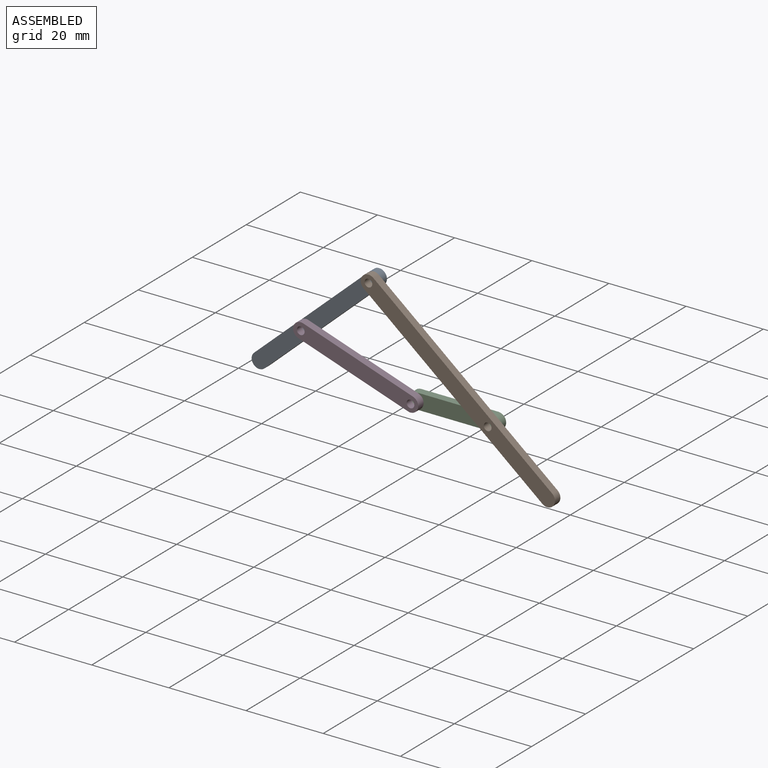
[diagram: assembled view]
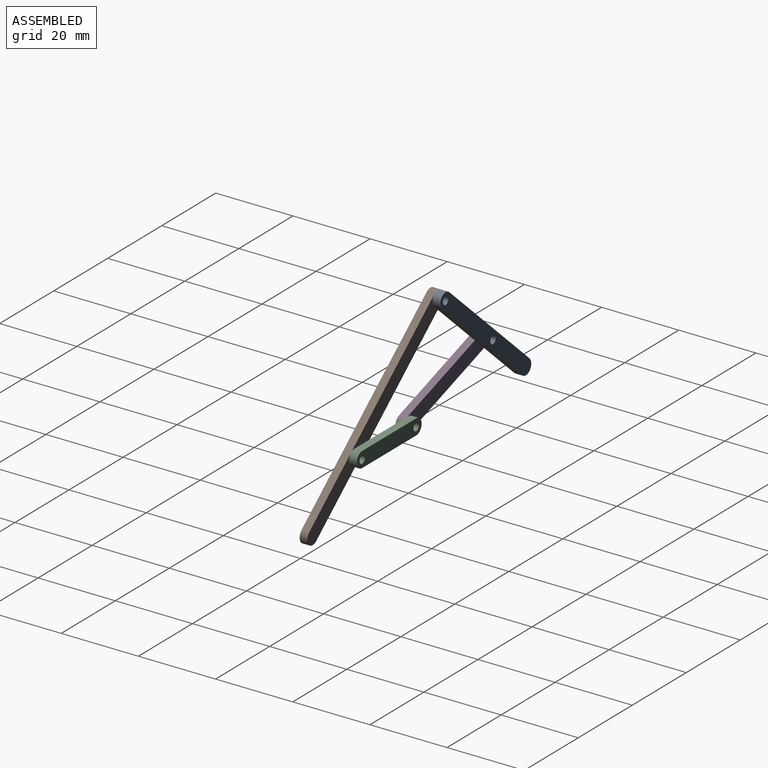
[diagram: assembled view, second angle]
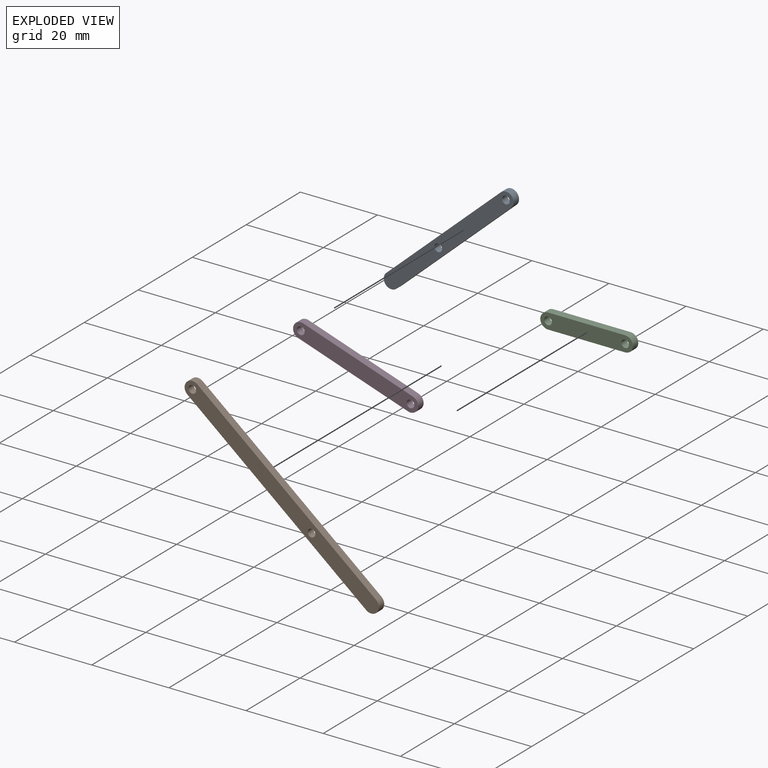
[diagram: exploded view]
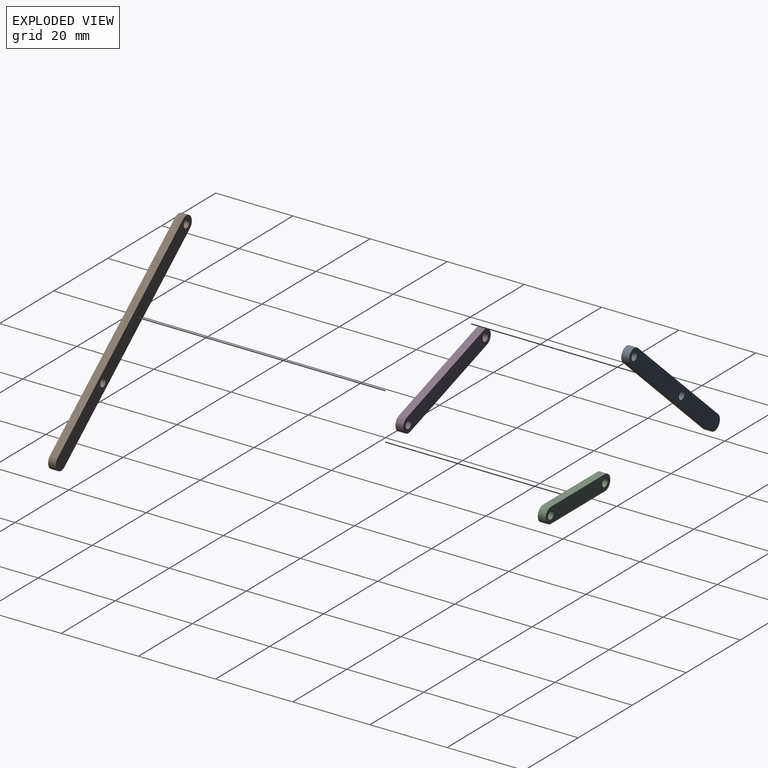
[diagram: exploded view, second angle]
ASSEMBLY  parts=4 mates=4
PART A: 8 faces, bbox 28.7x2x35.5 mm
  f0: plane 31.48x24.68mm, normal (0.79,0,-0.62), area 80mm2, adj f1,f4,f6,f7
  f1: cylinder r=2mm len=3.57mm, axis (0,-1,0), area 12.6mm2, adj f0,f2,f6,f7
  f2: plane 31.48x24.68mm, normal (-0.79,0,0.62), area 80mm2, adj f1,f4,f6,f7
  f3: cylinder r=1mm len=2mm, axis (0,-1,0), area 12.6mm2, adj f6,f7
  f4: cylinder r=2mm len=3.57mm, axis (0,-1,0), area 12.6mm2, adj f0,f2,f6,f7
  f5: cylinder r=1mm len=2mm, axis (0,-1,0), area 12.6mm2, adj f6,f7
  f6: plane 35.48x28.68mm, normal (0,1,0), area 166.3mm2, adj f0,f1,f2,f3,f4,f5
  f7: plane 35.48x28.68mm, normal (0,-1,0), area 166.3mm2, adj f0,f1,f2,f3,f4,f5
PART B: 8 faces, bbox 57.1x2x31.9 mm
  f0: plane 53.11x27.91mm, normal (-0.47,0,-0.89), area 120mm2, adj f1,f4,f6,f7
  f1: cylinder r=2mm len=3.77mm, axis (0,1,0), area 12.6mm2, adj f0,f2,f6,f7
  f2: plane 53.11x27.91mm, normal (0.47,0,0.89), area 120mm2, adj f1,f4,f6,f7
  f3: cylinder r=1mm len=2mm, axis (0,1,0), area 12.6mm2, adj f6,f7
  f4: cylinder r=2mm len=3.77mm, axis (0,1,0), area 12.6mm2, adj f0,f2,f6,f7
  f5: cylinder r=1mm len=2mm, axis (0,1,0), area 12.6mm2, adj f6,f7
  f6: plane 57.11x31.91mm, normal (0,-1,0), area 246.3mm2, adj f0,f1,f2,f3,f4,f5
  f7: plane 57.11x31.91mm, normal (0,1,0), area 246.3mm2, adj f0,f1,f2,f3,f4,f5
PART C: 8 faces, bbox 24x2x4 mm
  f0: plane 20x2mm, normal (0,0,1), area 40mm2, adj f1,f4,f6,f7
  f1: cylinder r=2mm len=4mm, axis (0,-1,0), area 12.6mm2, adj f0,f2,f6,f7
  f2: plane 20x2mm, normal (0,0,-1), area 40mm2, adj f1,f4,f6,f7
  f3: cylinder r=1mm len=2mm, axis (0,-1,0), area 12.6mm2, adj f6,f7
  f4: cylinder r=2mm len=4mm, axis (0,-1,0), area 12.6mm2, adj f0,f2,f6,f7
  f5: cylinder r=1mm len=2mm, axis (0,-1,0), area 12.6mm2, adj f6,f7
  f6: plane 24x4mm, normal (0,1,0), area 86.3mm2, adj f0,f1,f2,f3,f4,f5
  f7: plane 24x4mm, normal (0,-1,0), area 86.3mm2, adj f0,f1,f2,f3,f4,f5
PART D: 8 faces, bbox 34x2x4 mm
  f0: plane 30x2mm, normal (0,0,1), area 60mm2, adj f1,f4,f6,f7
  f1: cylinder r=2mm len=4mm, axis (0,1,0), area 12.6mm2, adj f0,f2,f6,f7
  f2: plane 30x2mm, normal (0,0,-1), area 60mm2, adj f1,f4,f6,f7
  f3: cylinder r=1mm len=2mm, axis (0,1,0), area 12.6mm2, adj f6,f7
  f4: cylinder r=2mm len=4mm, axis (0,1,0), area 12.6mm2, adj f0,f2,f6,f7
  f5: cylinder r=1mm len=2mm, axis (0,1,0), area 12.6mm2, adj f6,f7
  f6: plane 34x4mm, normal (0,-1,0), area 126.3mm2, adj f0,f1,f2,f3,f4,f5
  f7: plane 34x4mm, normal (0,1,0), area 126.3mm2, adj f0,f1,f2,f3,f4,f5
PLACE A rot(axis=(0,1,0),9.8deg) t=(0.83,0,1.05)mm
PLACE B rot(axis=(0,1,0),11.7deg) t=(0,0,0)mm
PLACE C at identity fixed
PLACE D rot(axis=(0,1,0),18.6deg) t=(-1.04,0,-6.36)mm
MATE revolute A.f5 <-> D.f5  axis (0,-1,0) through (-48.44,0,9.55)mm
MATE revolute B.f3 <-> A.f1  axis (0,-1,0) through (-30.9,0,25.4)mm
MATE revolute D.f4 <-> C.f5  axis (0,-1,0) through (-20,0,0)mm
MATE revolute B.f5 <-> C.f3  axis (0,-1,0) through (0,0,0)mm
